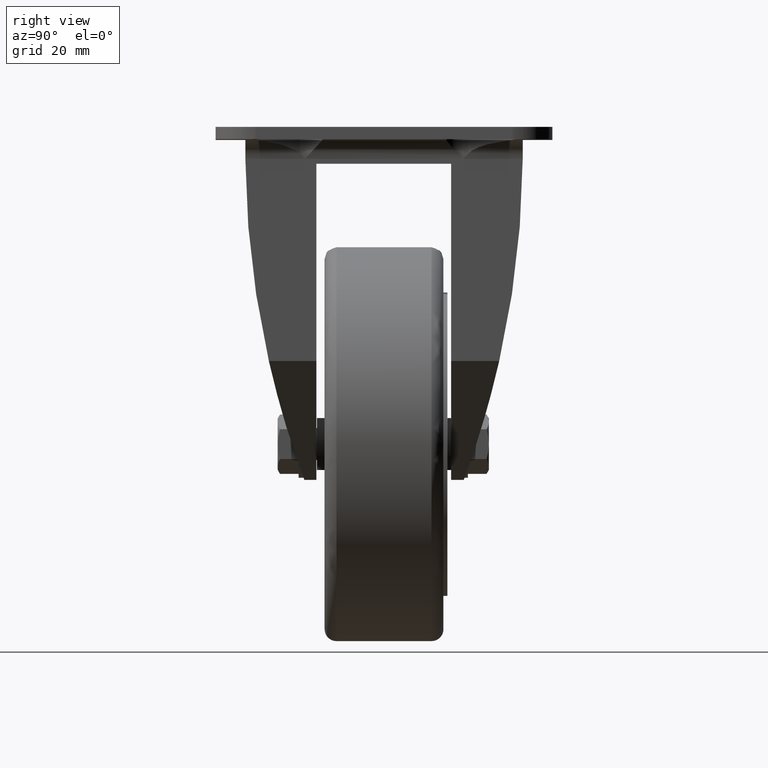
[diagram: clean part render]
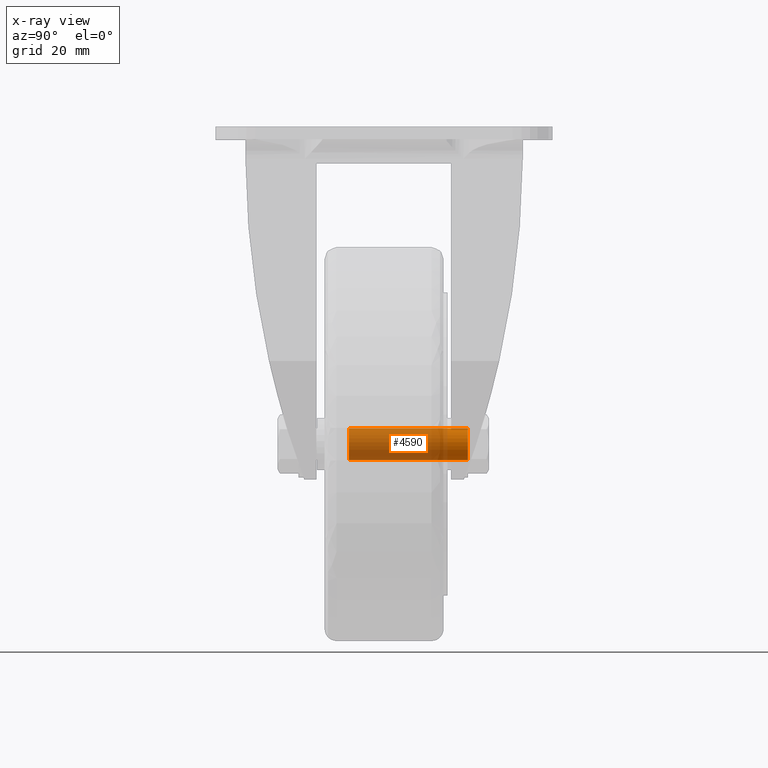
[diagram: x-ray — body ghosted, one internal face saturated and labeled with its STEP entity id]
A machine part, right view, then the same camera in x-ray: the body is ghosted and one INTERNAL B-rep face — a face not visible from any outside direction — is saturated and labeled: STEP entity #4590.
In plain terms, the highlighted cylindrical surface (bore or boss wall) has radius 4 mm, axis along (-0, 1, 0).
Its self-contained STEP definition (entity closure, byte-faithful):
#4365=CARTESIAN_POINT('',(-49.499989609626937,21.170057319299563,-76.075073123268339));
#4366=VERTEX_POINT('',#4365);
#4367=CARTESIAN_POINT('',(-49.499989609626937,21.170057319299563,-84.075073123268339));
#4368=VERTEX_POINT('',#4367);
#4369=CARTESIAN_POINT('',(-49.499989609626937,21.170057319299563,-80.075073123268339));
#4370=DIRECTION('',(-7.421224E-016,1.0,9.957993E-017));
#4371=DIRECTION('',(1.647843E-031,-9.957993E-017,1.0));
#4372=AXIS2_PLACEMENT_3D('',#4369,#4370,#4371);
#4373=CIRCLE('',#4372,4.0);
#4374=EDGE_CURVE('',#4366,#4368,#4373,.T.);
#4376=CARTESIAN_POINT('',(-49.499989609626937,21.170057319299563,-80.075073123268339));
#4377=DIRECTION('',(-7.421224E-016,1.0,9.957993E-017));
#4378=DIRECTION('',(1.647843E-031,-9.957993E-017,1.0));
#4379=AXIS2_PLACEMENT_3D('',#4376,#4377,#4378);
#4380=CIRCLE('',#4379,4.0);
#4381=EDGE_CURVE('',#4368,#4366,#4380,.T.);
#4556=CARTESIAN_POINT('',(-49.499989609626937,21.170057319299563,-80.075073123268339));
#4557=DIRECTION('',(-7.421224E-016,1.0,9.957993E-017));
#4558=DIRECTION('',(1.647843E-031,-9.957993E-017,1.0));
#4559=AXIS2_PLACEMENT_3D('',#4556,#4557,#4558);
#4560=CYLINDRICAL_SURFACE('',#4559,4.0);
#4561=CARTESIAN_POINT('',(-49.499989609626937,-8.829942680700439,-76.075073123268339));
#4562=VERTEX_POINT('',#4561);
#4563=CARTESIAN_POINT('',(-49.499989609626937,21.170057319299563,-76.075073123268339));
#4564=DIRECTION('',(0.0,-1.0,0.0));
#4565=VECTOR('',#4564,30.0);
#4566=LINE('',#4563,#4565);
#4567=EDGE_CURVE('',#4366,#4562,#4566,.T.);
#4568=ORIENTED_EDGE('',*,*,#4567,.F.);
#4569=ORIENTED_EDGE('',*,*,#4381,.F.);
#4570=ORIENTED_EDGE('',*,*,#4374,.F.);
#4571=ORIENTED_EDGE('',*,*,#4567,.T.);
#4572=CARTESIAN_POINT('',(-49.499989609626937,-8.829942680700437,-84.075073123268339));
#4573=VERTEX_POINT('',#4572);
#4574=CARTESIAN_POINT('',(-49.499989609626937,-8.829942680700437,-80.075073123268339));
#4575=DIRECTION('',(-7.421224E-016,1.0,9.957993E-017));
#4576=DIRECTION('',(1.647843E-031,-9.957993E-017,1.0));
#4577=AXIS2_PLACEMENT_3D('',#4574,#4575,#4576);
#4578=CIRCLE('',#4577,4.0);
#4579=EDGE_CURVE('',#4562,#4573,#4578,.T.);
#4580=ORIENTED_EDGE('',*,*,#4579,.T.);
#4581=CARTESIAN_POINT('',(-49.499989609626937,-8.829942680700437,-80.075073123268339));
#4582=DIRECTION('',(-7.421224E-016,1.0,9.957993E-017));
#4583=DIRECTION('',(1.647843E-031,-9.957993E-017,1.0));
#4584=AXIS2_PLACEMENT_3D('',#4581,#4582,#4583);
#4585=CIRCLE('',#4584,4.0);
#4586=EDGE_CURVE('',#4573,#4562,#4585,.T.);
#4587=ORIENTED_EDGE('',*,*,#4586,.T.);
#4588=EDGE_LOOP('',(#4568,#4569,#4570,#4571,#4580,#4587));
#4589=FACE_OUTER_BOUND('',#4588,.T.);
#4590=ADVANCED_FACE('',(#4589),#4560,.T.);